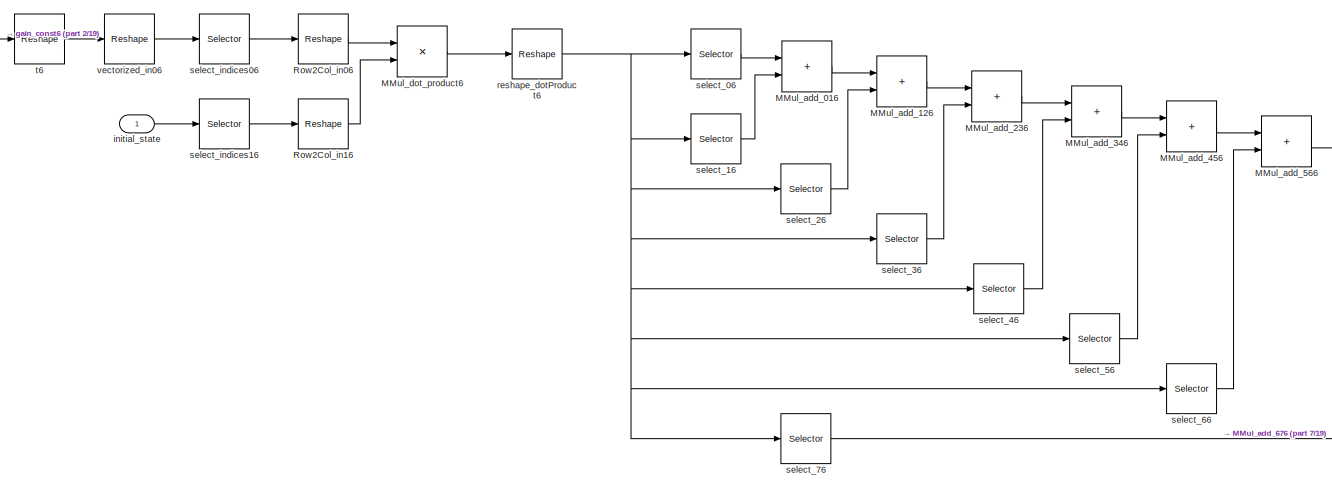
[diagram: root canvas - part 1/19, middle left region]
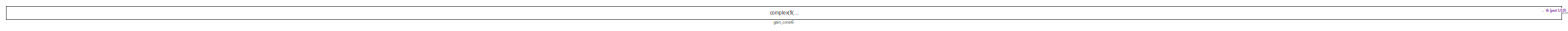
[diagram: root canvas - part 2/19, top left region]
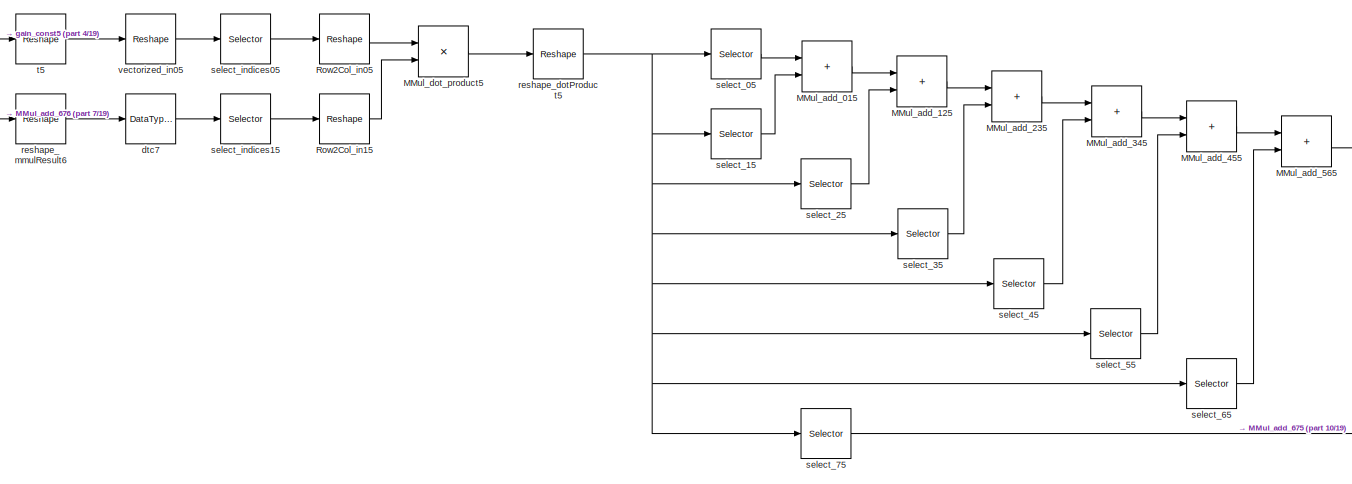
[diagram: root canvas - part 3/19, middle left region]
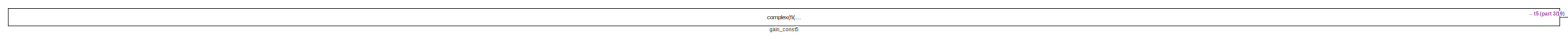
[diagram: root canvas - part 4/19, top left region]
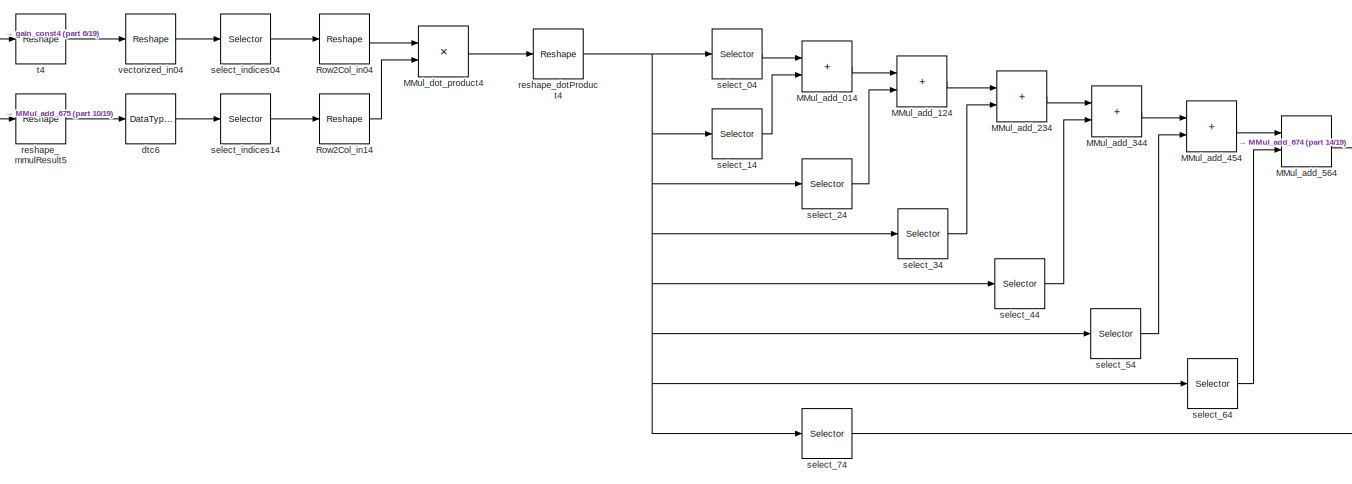
[diagram: root canvas - part 5/19, central region]
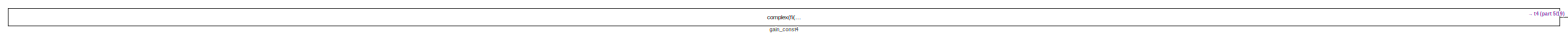
[diagram: root canvas - part 6/19, top center region]
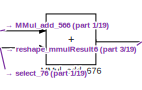
[diagram: root canvas - part 7/19, top left region]
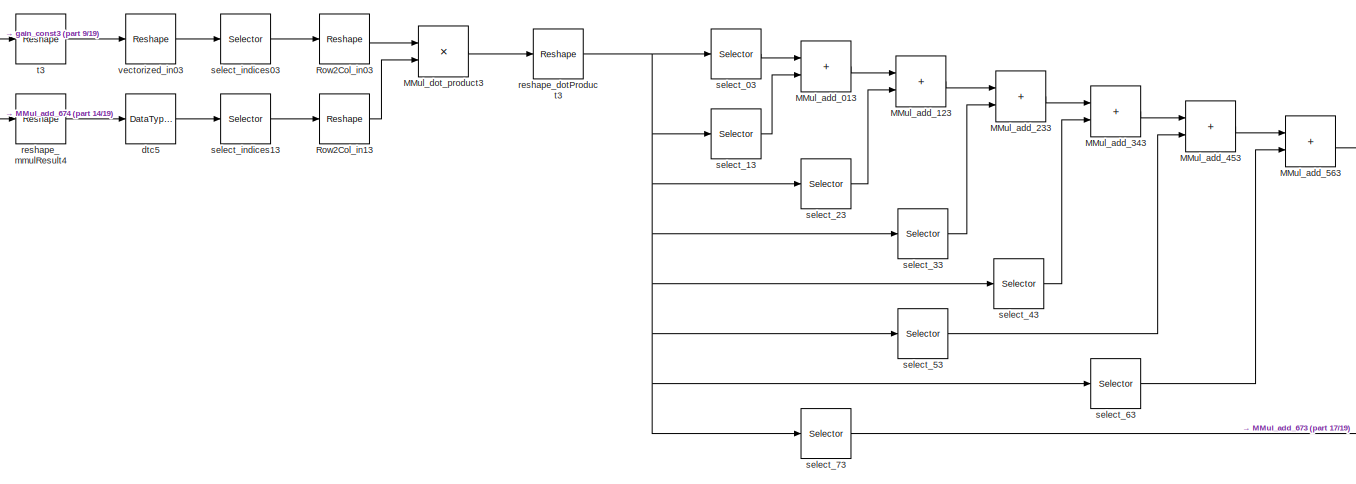
[diagram: root canvas - part 8/19, central region]
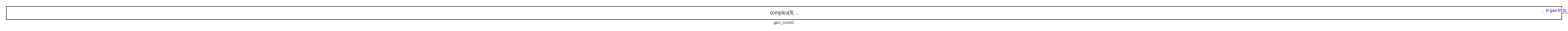
[diagram: root canvas - part 9/19, top center region]
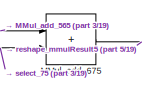
[diagram: root canvas - part 10/19, top center region]
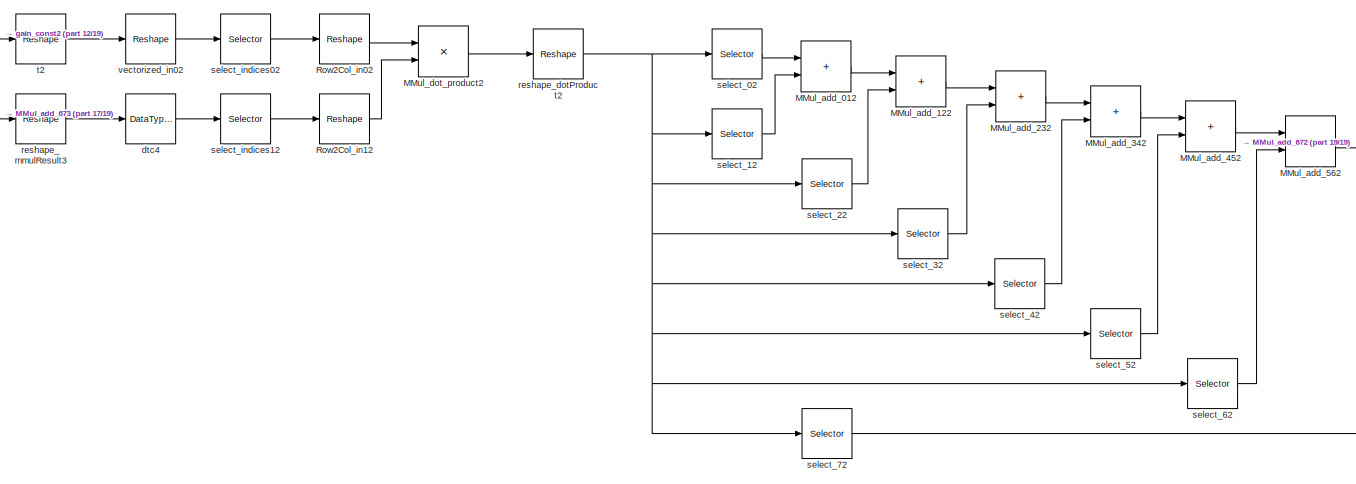
[diagram: root canvas - part 11/19, middle right region]
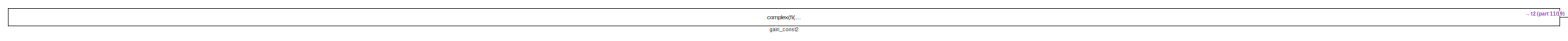
[diagram: root canvas - part 12/19, top center region]
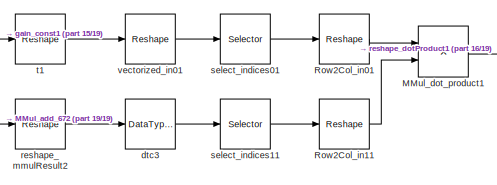
[diagram: root canvas - part 13/19, middle right region]
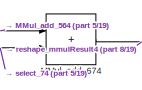
[diagram: root canvas - part 14/19, central region]
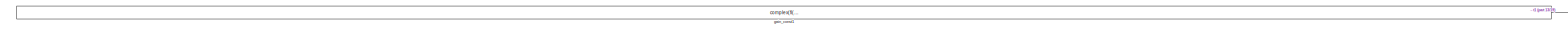
[diagram: root canvas - part 15/19, middle right region]
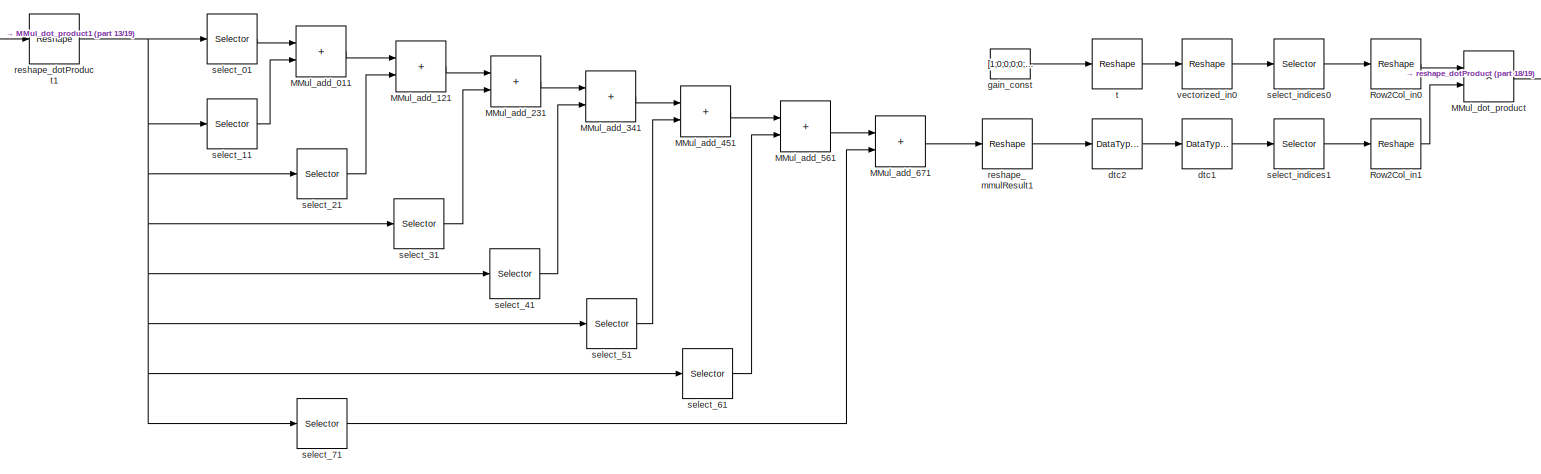
[diagram: root canvas - part 16/19, middle right region]
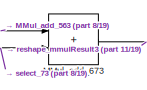
[diagram: root canvas - part 17/19, central region]
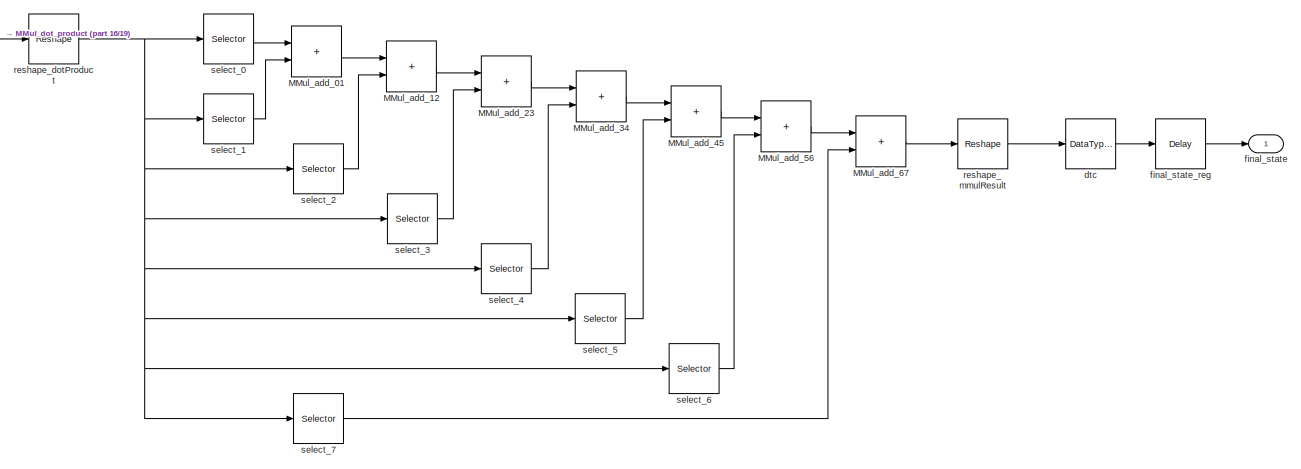
[diagram: root canvas - part 18/19, bottom right region]
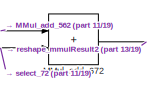
[diagram: root canvas - part 19/19, middle right region]
MODEL slx_ea6e0d9b5152
KIND model
CONFIG AbsTol = auto
CONFIG EnableMultiTasking = off
CONFIG FixedStep = auto
CONFIG MaxStep = auto
CONFIG MinStep = auto
CONFIG RelTol = 1e-3
CONFIG SampleTimeConstraint = Unconstrained
CONFIG SolverName = VariableStepAuto
CONFIG StartTime = 0.0
CONFIG StopTime = 10.0
BLOCK [Sum] MMul_add_01
  IconShape = rectangular
  OutDataTypeStr = fixdt(1, 18, 14)
  SampleTime = 1
BLOCK [Sum] MMul_add_011
  IconShape = rectangular
  OutDataTypeStr = fixdt(1, 32, 26)
  SampleTime = 1
BLOCK [Sum] MMul_add_012
  IconShape = rectangular
  OutDataTypeStr = fixdt(1, 19, 13)
  SampleTime = 1
BLOCK [Sum] MMul_add_013
  IconShape = rectangular
  OutDataTypeStr = fixdt(1, 32, 26)
  SampleTime = 1
BLOCK [Sum] MMul_add_014
  IconShape = rectangular
  OutDataTypeStr = fixdt(1, 19, 13)
  SampleTime = 1
BLOCK [Sum] MMul_add_015
  IconShape = rectangular
  OutDataTypeStr = fixdt(1, 19, 13)
  SampleTime = 1
BLOCK [Sum] MMul_add_016
  IconShape = rectangular
  OutDataTypeStr = fixdt(1, 18, 13)
  SampleTime = 1
BLOCK [Sum] MMul_add_12
  IconShape = rectangular
  OutDataTypeStr = fixdt(1, 18, 14)
  SampleTime = 1
BLOCK [Sum] MMul_add_121
  IconShape = rectangular
  OutDataTypeStr = fixdt(1, 32, 26)
  SampleTime = 1
BLOCK [Sum] MMul_add_122
  IconShape = rectangular
  OutDataTypeStr = fixdt(1, 19, 13)
  SampleTime = 1
BLOCK [Sum] MMul_add_123
  IconShape = rectangular
  OutDataTypeStr = fixdt(1, 32, 26)
  SampleTime = 1
BLOCK [Sum] MMul_add_124
  IconShape = rectangular
  OutDataTypeStr = fixdt(1, 19, 13)
  SampleTime = 1
BLOCK [Sum] MMul_add_125
  IconShape = rectangular
  OutDataTypeStr = fixdt(1, 19, 13)
  SampleTime = 1
BLOCK [Sum] MMul_add_126
  IconShape = rectangular
  OutDataTypeStr = fixdt(1, 18, 13)
  SampleTime = 1
BLOCK [Sum] MMul_add_23
  IconShape = rectangular
  OutDataTypeStr = fixdt(1, 18, 14)
  SampleTime = 1
BLOCK [Sum] MMul_add_231
  IconShape = rectangular
  OutDataTypeStr = fixdt(1, 32, 26)
  SampleTime = 1
BLOCK [Sum] MMul_add_232
  IconShape = rectangular
  OutDataTypeStr = fixdt(1, 19, 13)
  SampleTime = 1
BLOCK [Sum] MMul_add_233
  IconShape = rectangular
  OutDataTypeStr = fixdt(1, 32, 26)
  SampleTime = 1
BLOCK [Sum] MMul_add_234
  IconShape = rectangular
  OutDataTypeStr = fixdt(1, 19, 13)
  SampleTime = 1
BLOCK [Sum] MMul_add_235
  IconShape = rectangular
  OutDataTypeStr = fixdt(1, 19, 13)
  SampleTime = 1
BLOCK [Sum] MMul_add_236
  IconShape = rectangular
  OutDataTypeStr = fixdt(1, 18, 13)
  SampleTime = 1
BLOCK [Sum] MMul_add_34
  IconShape = rectangular
  OutDataTypeStr = fixdt(1, 18, 14)
  SampleTime = 1
BLOCK [Sum] MMul_add_341
  IconShape = rectangular
  OutDataTypeStr = fixdt(1, 32, 26)
  SampleTime = 1
BLOCK [Sum] MMul_add_342
  IconShape = rectangular
  OutDataTypeStr = fixdt(1, 19, 13)
  SampleTime = 1
BLOCK [Sum] MMul_add_343
  IconShape = rectangular
  OutDataTypeStr = fixdt(1, 32, 26)
  SampleTime = 1
BLOCK [Sum] MMul_add_344
  IconShape = rectangular
  OutDataTypeStr = fixdt(1, 19, 13)
  SampleTime = 1
BLOCK [Sum] MMul_add_345
  IconShape = rectangular
  OutDataTypeStr = fixdt(1, 19, 13)
  SampleTime = 1
BLOCK [Sum] MMul_add_346
  IconShape = rectangular
  OutDataTypeStr = fixdt(1, 18, 13)
  SampleTime = 1
BLOCK [Sum] MMul_add_45
  IconShape = rectangular
  OutDataTypeStr = fixdt(1, 18, 14)
  SampleTime = 1
BLOCK [Sum] MMul_add_451
  IconShape = rectangular
  OutDataTypeStr = fixdt(1, 32, 26)
  SampleTime = 1
BLOCK [Sum] MMul_add_452
  IconShape = rectangular
  OutDataTypeStr = fixdt(1, 19, 13)
  SampleTime = 1
BLOCK [Sum] MMul_add_453
  IconShape = rectangular
  OutDataTypeStr = fixdt(1, 32, 26)
  SampleTime = 1
BLOCK [Sum] MMul_add_454
  IconShape = rectangular
  OutDataTypeStr = fixdt(1, 19, 13)
  SampleTime = 1
BLOCK [Sum] MMul_add_455
  IconShape = rectangular
  OutDataTypeStr = fixdt(1, 19, 13)
  SampleTime = 1
BLOCK [Sum] MMul_add_456
  IconShape = rectangular
  OutDataTypeStr = fixdt(1, 18, 13)
  SampleTime = 1
BLOCK [Sum] MMul_add_56
  IconShape = rectangular
  OutDataTypeStr = fixdt(1, 18, 14)
  SampleTime = 1
BLOCK [Sum] MMul_add_561
  IconShape = rectangular
  OutDataTypeStr = fixdt(1, 32, 26)
  SampleTime = 1
BLOCK [Sum] MMul_add_562
  IconShape = rectangular
  OutDataTypeStr = fixdt(1, 19, 13)
  SampleTime = 1
BLOCK [Sum] MMul_add_563
  IconShape = rectangular
  OutDataTypeStr = fixdt(1, 32, 26)
  SampleTime = 1
BLOCK [Sum] MMul_add_564
  IconShape = rectangular
  OutDataTypeStr = fixdt(1, 19, 13)
  SampleTime = 1
BLOCK [Sum] MMul_add_565
  IconShape = rectangular
  OutDataTypeStr = fixdt(1, 19, 13)
  SampleTime = 1
BLOCK [Sum] MMul_add_566
  IconShape = rectangular
  OutDataTypeStr = fixdt(1, 18, 13)
  SampleTime = 1
BLOCK [Sum] MMul_add_67
  IconShape = rectangular
  OutDataTypeStr = fixdt(1, 18, 14)
  SampleTime = 1
BLOCK [Sum] MMul_add_671
  IconShape = rectangular
  OutDataTypeStr = fixdt(1, 32, 26)
  SampleTime = 1
BLOCK [Sum] MMul_add_672
  IconShape = rectangular
  OutDataTypeStr = fixdt(1, 19, 13)
  SampleTime = 1
BLOCK [Sum] MMul_add_673
  IconShape = rectangular
  OutDataTypeStr = fixdt(1, 32, 26)
  SampleTime = 1
BLOCK [Sum] MMul_add_674
  IconShape = rectangular
  OutDataTypeStr = fixdt(1, 19, 13)
  SampleTime = 1
BLOCK [Sum] MMul_add_675
  IconShape = rectangular
  OutDataTypeStr = fixdt(1, 19, 13)
  SampleTime = 1
BLOCK [Sum] MMul_add_676
  IconShape = rectangular
  OutDataTypeStr = fixdt(1, 18, 13)
  SampleTime = 1
BLOCK [Product] MMul_dot_product
  Inputs = **
  OutDataTypeStr = fixdt(1, 18, 14)
  SampleTime = 1
BLOCK [Product] MMul_dot_product1
  Inputs = **
  OutDataTypeStr = fixdt(1, 32, 26)
  SampleTime = 1
BLOCK [Product] MMul_dot_product2
  Inputs = **
  OutDataTypeStr = fixdt(1, 19, 13)
  SampleTime = 1
BLOCK [Product] MMul_dot_product3
  Inputs = **
  OutDataTypeStr = fixdt(1, 32, 26)
  SampleTime = 1
BLOCK [Product] MMul_dot_product4
  Inputs = **
  OutDataTypeStr = fixdt(1, 19, 13)
  SampleTime = 1
BLOCK [Product] MMul_dot_product5
  Inputs = **
  OutDataTypeStr = fixdt(1, 19, 13)
  SampleTime = 1
BLOCK [Product] MMul_dot_product6
  Inputs = **
  OutDataTypeStr = fixdt(1, 18, 13)
  SampleTime = 1
BLOCK [Reshape] Row2Col_in0
  OutputDimensionality = Column vector (2-D)
BLOCK [Reshape] Row2Col_in01
  OutputDimensionality = Column vector (2-D)
BLOCK [Reshape] Row2Col_in02
  OutputDimensionality = Column vector (2-D)
BLOCK [Reshape] Row2Col_in03
  OutputDimensionality = Column vector (2-D)
BLOCK [Reshape] Row2Col_in04
  OutputDimensionality = Column vector (2-D)
BLOCK [Reshape] Row2Col_in05
  OutputDimensionality = Column vector (2-D)
BLOCK [Reshape] Row2Col_in06
  OutputDimensionality = Column vector (2-D)
BLOCK [Reshape] Row2Col_in1
  OutputDimensionality = Column vector (2-D)
BLOCK [Reshape] Row2Col_in11
  OutputDimensionality = Column vector (2-D)
BLOCK [Reshape] Row2Col_in12
  OutputDimensionality = Column vector (2-D)
BLOCK [Reshape] Row2Col_in13
  OutputDimensionality = Column vector (2-D)
BLOCK [Reshape] Row2Col_in14
  OutputDimensionality = Column vector (2-D)
BLOCK [Reshape] Row2Col_in15
  OutputDimensionality = Column vector (2-D)
BLOCK [Reshape] Row2Col_in16
  OutputDimensionality = Column vector (2-D)
BLOCK [DataTypeConversion] dtc
  OutDataTypeStr = fixdt(1, 14, 14)
  RndMeth = Floor
  SampleTime = 1
  SaturateOnIntegerOverflow = off
BLOCK [DataTypeConversion] dtc1
  OutDataTypeStr = fixdt(1, 14, 14)
  RndMeth = Floor
  SampleTime = 1
  SaturateOnIntegerOverflow = off
BLOCK [DataTypeConversion] dtc2
  OutDataTypeStr = fixdt(1, 14, 13)
  RndMeth = Floor
  SampleTime = 1
  SaturateOnIntegerOverflow = off
BLOCK [DataTypeConversion] dtc3
  OutDataTypeStr = fixdt(1, 14, 13)
  RndMeth = Floor
  SampleTime = 1
  SaturateOnIntegerOverflow = off
BLOCK [DataTypeConversion] dtc4
  OutDataTypeStr = fixdt(1, 14, 13)
  RndMeth = Floor
  SampleTime = 1
  SaturateOnIntegerOverflow = off
BLOCK [DataTypeConversion] dtc5
  OutDataTypeStr = fixdt(1, 14, 13)
  RndMeth = Floor
  SampleTime = 1
  SaturateOnIntegerOverflow = off
BLOCK [DataTypeConversion] dtc6
  OutDataTypeStr = fixdt(1, 14, 13)
  RndMeth = Floor
  SampleTime = 1
  SaturateOnIntegerOverflow = off
BLOCK [DataTypeConversion] dtc7
  OutDataTypeStr = fixdt(1, 14, 13)
  RndMeth = Floor
  SampleTime = 1
  SaturateOnIntegerOverflow = off
BLOCK [Outport] final_state
  OutDataTypeStr = fixdt(1,14,14,'DataTypeOverride', 'Off')
  PortDimensions = [8 1]
  SampleTime = 1
  SignalType = complex
BLOCK [Delay] final_state_reg
  DelayLength = double(1)
  InitialCondition = 0
  InputPortMap = u0
  SampleTime = 1
BLOCK [Constant] gain_const
  OutDataTypeStr = fixdt(0, 1, 0)
  SampleTime = 1
  Value = [1;0;0;0;0;0;0;0;0;1;0;0;0;0;0;0;0;0;1;0;0;0;0;0;0;0;0;1;0;0;0;0;0;0;0;0;1;0;0;0;0;0;0;0;0;1;0;0;0;0;0;0;0;0;1;0;0;0;0;0;0;0;0;1]
BLOCK [Constant] gain_const1
  OutDataTypeStr = fixdt(1, 14, 13)
  SampleTime = 1
  Value = complex(fi("numerictype",numerictype(1,14,13),"fimath",fimath("RoundingMethod", "Floor","OverflowAction", "Wrap","ProductMode","FullPrecision","SumMode","FullPrecision"),"Value","[0.70703125;0.70703125;0;0;0;0;0;0;0.70703125;-0.7071533203125;0;0;0;0;0;0;0;0;0.70703125;0.70703125;0;0;0;0;0;0;0.70703125;-0.7071533203125;0;0;0;0;0;0;0;0;0.70703125;0.70703125;0;0;0;0;0;0;0.70703125;-0.7071533203125;0;...<+383ch>
BLOCK [Constant] gain_const2
  OutDataTypeStr = fixdt(0, 1, 0)
  SampleTime = 1
  Value = complex(fi("numerictype",numerictype(0,1,0),"fimath",fimath("RoundingMethod", "Floor","OverflowAction", "Wrap","ProductMode","FullPrecision","SumMode","FullPrecision"),"Value","[1;0;0;0;0;0;0;0;0;1;0;0;0;0;0;0;0;0;1;0;0;0;0;0;0;0;0;1;0;0;0;0;0;0;0;0;1;0;0;0;0;0;0;0;0;1;0;0;0;0;0;0;0;0;1;0;0;0;0;0;0;0;0;1]"), fi("numerictype",numerictype(0,1,0),"fimath",fimath("RoundingMethod", "Floor","OverflowAct...<+211ch>  <repeated x3 — deduplicated; at blocks: gain_const2, gain_const4, gain_const5>
BLOCK [Constant] gain_const3
  OutDataTypeStr = fixdt(1, 14, 13)
  SampleTime = 1
  Value = complex(fi("numerictype",numerictype(1,14,13),"fimath",fimath("RoundingMethod", "Floor","OverflowAction", "Wrap","ProductMode","FullPrecision","SumMode","FullPrecision"),"Value","[0.70703125;0;0.70703125;0;0;0;0;0;0;0.70703125;0;0.70703125;0;0;0;0;0.70703125;0;-0.707275390625;0;0;0;0;0;0;0.70703125;0;-0.707275390625;0;0;0;0;0;0;0;0;0.70703125;0;0.70703125;0;0;0;0;0;0;0.70703125;0;0.70703125;0;0;0;...<+379ch>
BLOCK [Constant] gain_const4
  OutDataTypeStr = fixdt(0, 1, 0)
  SampleTime = 1
BLOCK [Constant] gain_const5
  OutDataTypeStr = fixdt(0, 1, 0)
  SampleTime = 1
BLOCK [Constant] gain_const6
  OutDataTypeStr = fixdt(1, 14, 13)
  SampleTime = 1
  Value = complex(fi("numerictype",numerictype(1,14,13),"fimath",fimath("RoundingMethod", "Floor","OverflowAction", "Wrap","ProductMode","FullPrecision","SumMode","FullPrecision"),"Value","[0.70703125;0;0;0;0.70703125;0;0;0;0;0.70703125;0;0;0;0.70703125;0;0;0;0;0.70703125;0;0;0;0.70703125;0;0;0;0;0.70703125;0;0;0;0.70703125;0.70703125;0;0;0;-0.707275390625;0;0;0;0;0.70703125;0;0;0;-0.707275390625;0;0;0;0;0....<+379ch>
BLOCK [Inport] initial_state
  OutDataTypeStr = fixdt(0,1,0,'DataTypeOverride', 'Off')
  PortDimensions = [8 1]
  SampleTime = 1
BLOCK [Reshape] reshape_dotProduct
  OutputDimensionality = Customize
  OutputDimensions = [8,8]
BLOCK [Reshape] reshape_dotProduct1
  OutputDimensionality = Customize
  OutputDimensions = [8,8]
BLOCK [Reshape] reshape_dotProduct2
  OutputDimensionality = Customize
  OutputDimensions = [8,8]
BLOCK [Reshape] reshape_dotProduct3
  OutputDimensionality = Customize
  OutputDimensions = [8,8]
BLOCK [Reshape] reshape_dotProduct4
  OutputDimensionality = Customize
  OutputDimensions = [8,8]
BLOCK [Reshape] reshape_dotProduct5
  OutputDimensionality = Customize
  OutputDimensions = [8,8]
BLOCK [Reshape] reshape_dotProduct6
  OutputDimensionality = Customize
  OutputDimensions = [8,8]
BLOCK [Reshape] reshape_mmulResult
  OutputDimensionality = Customize
  OutputDimensions = [8,1]
BLOCK [Reshape] reshape_mmulResult1
  OutputDimensionality = Customize
  OutputDimensions = [8,1]
BLOCK [Reshape] reshape_mmulResult2
  OutputDimensionality = Customize
  OutputDimensions = [8,1]
BLOCK [Reshape] reshape_mmulResult3
  OutputDimensionality = Customize
  OutputDimensions = [8,1]
BLOCK [Reshape] reshape_mmulResult4
  OutputDimensionality = Customize
  OutputDimensions = [8,1]
BLOCK [Reshape] reshape_mmulResult5
  OutputDimensionality = Customize
  OutputDimensions = [8,1]
BLOCK [Reshape] reshape_mmulResult6
  OutputDimensionality = Customize
  OutputDimensions = [8,1]
BLOCK [Selector] select_0
  IndexOptions = Index vector (dialog),Select all
  Indices = double(1),[]
  NumberOfDimensions = 2
  OutputSizes = 1
BLOCK [Selector] select_01
  IndexOptions = Index vector (dialog),Select all
  Indices = double(1),[]
  NumberOfDimensions = 2
  OutputSizes = 1
BLOCK [Selector] select_02
  IndexOptions = Index vector (dialog),Select all
  Indices = double(1),[]
  NumberOfDimensions = 2
  OutputSizes = 1
BLOCK [Selector] select_03
  IndexOptions = Index vector (dialog),Select all
  Indices = double(1),[]
  NumberOfDimensions = 2
  OutputSizes = 1
BLOCK [Selector] select_04
  IndexOptions = Index vector (dialog),Select all
  Indices = double(1),[]
  NumberOfDimensions = 2
  OutputSizes = 1
BLOCK [Selector] select_05
  IndexOptions = Index vector (dialog),Select all
  Indices = double(1),[]
  NumberOfDimensions = 2
  OutputSizes = 1
BLOCK [Selector] select_06
  IndexOptions = Index vector (dialog),Select all
  Indices = double(1),[]
  NumberOfDimensions = 2
  OutputSizes = 1
BLOCK [Selector] select_1
  IndexOptions = Index vector (dialog),Select all
  Indices = double(2),[]
  NumberOfDimensions = 2
  OutputSizes = 1
BLOCK [Selector] select_11
  IndexOptions = Index vector (dialog),Select all
  Indices = double(2),[]
  NumberOfDimensions = 2
  OutputSizes = 1
BLOCK [Selector] select_12
  IndexOptions = Index vector (dialog),Select all
  Indices = double(2),[]
  NumberOfDimensions = 2
  OutputSizes = 1
BLOCK [Selector] select_13
  IndexOptions = Index vector (dialog),Select all
  Indices = double(2),[]
  NumberOfDimensions = 2
  OutputSizes = 1
BLOCK [Selector] select_14
  IndexOptions = Index vector (dialog),Select all
  Indices = double(2),[]
  NumberOfDimensions = 2
  OutputSizes = 1
BLOCK [Selector] select_15
  IndexOptions = Index vector (dialog),Select all
  Indices = double(2),[]
  NumberOfDimensions = 2
  OutputSizes = 1
BLOCK [Selector] select_16
  IndexOptions = Index vector (dialog),Select all
  Indices = double(2),[]
  NumberOfDimensions = 2
  OutputSizes = 1
BLOCK [Selector] select_2
  IndexOptions = Index vector (dialog),Select all
  Indices = double(3),[]
  NumberOfDimensions = 2
  OutputSizes = 1
BLOCK [Selector] select_21
  IndexOptions = Index vector (dialog),Select all
  Indices = double(3),[]
  NumberOfDimensions = 2
  OutputSizes = 1
BLOCK [Selector] select_22
  IndexOptions = Index vector (dialog),Select all
  Indices = double(3),[]
  NumberOfDimensions = 2
  OutputSizes = 1
BLOCK [Selector] select_23
  IndexOptions = Index vector (dialog),Select all
  Indices = double(3),[]
  NumberOfDimensions = 2
  OutputSizes = 1
BLOCK [Selector] select_24
  IndexOptions = Index vector (dialog),Select all
  Indices = double(3),[]
  NumberOfDimensions = 2
  OutputSizes = 1
BLOCK [Selector] select_25
  IndexOptions = Index vector (dialog),Select all
  Indices = double(3),[]
  NumberOfDimensions = 2
  OutputSizes = 1
BLOCK [Selector] select_26
  IndexOptions = Index vector (dialog),Select all
  Indices = double(3),[]
  NumberOfDimensions = 2
  OutputSizes = 1
BLOCK [Selector] select_3
  IndexOptions = Index vector (dialog),Select all
  Indices = double(4),[]
  NumberOfDimensions = 2
  OutputSizes = 1
BLOCK [Selector] select_31
  IndexOptions = Index vector (dialog),Select all
  Indices = double(4),[]
  NumberOfDimensions = 2
  OutputSizes = 1
BLOCK [Selector] select_32
  IndexOptions = Index vector (dialog),Select all
  Indices = double(4),[]
  NumberOfDimensions = 2
  OutputSizes = 1
BLOCK [Selector] select_33
  IndexOptions = Index vector (dialog),Select all
  Indices = double(4),[]
  NumberOfDimensions = 2
  OutputSizes = 1
BLOCK [Selector] select_34
  IndexOptions = Index vector (dialog),Select all
  Indices = double(4),[]
  NumberOfDimensions = 2
  OutputSizes = 1
BLOCK [Selector] select_35
  IndexOptions = Index vector (dialog),Select all
  Indices = double(4),[]
  NumberOfDimensions = 2
  OutputSizes = 1
BLOCK [Selector] select_36
  IndexOptions = Index vector (dialog),Select all
  Indices = double(4),[]
  NumberOfDimensions = 2
  OutputSizes = 1
BLOCK [Selector] select_4
  IndexOptions = Index vector (dialog),Select all
  Indices = double(5),[]
  NumberOfDimensions = 2
  OutputSizes = 1
BLOCK [Selector] select_41
  IndexOptions = Index vector (dialog),Select all
  Indices = double(5),[]
  NumberOfDimensions = 2
  OutputSizes = 1
BLOCK [Selector] select_42
  IndexOptions = Index vector (dialog),Select all
  Indices = double(5),[]
  NumberOfDimensions = 2
  OutputSizes = 1
BLOCK [Selector] select_43
  IndexOptions = Index vector (dialog),Select all
  Indices = double(5),[]
  NumberOfDimensions = 2
  OutputSizes = 1
BLOCK [Selector] select_44
  IndexOptions = Index vector (dialog),Select all
  Indices = double(5),[]
  NumberOfDimensions = 2
  OutputSizes = 1
BLOCK [Selector] select_45
  IndexOptions = Index vector (dialog),Select all
  Indices = double(5),[]
  NumberOfDimensions = 2
  OutputSizes = 1
BLOCK [Selector] select_46
  IndexOptions = Index vector (dialog),Select all
  Indices = double(5),[]
  NumberOfDimensions = 2
  OutputSizes = 1
BLOCK [Selector] select_5
  IndexOptions = Index vector (dialog),Select all
  Indices = double(6),[]
  NumberOfDimensions = 2
  OutputSizes = 1
BLOCK [Selector] select_51
  IndexOptions = Index vector (dialog),Select all
  Indices = double(6),[]
  NumberOfDimensions = 2
  OutputSizes = 1
BLOCK [Selector] select_52
  IndexOptions = Index vector (dialog),Select all
  Indices = double(6),[]
  NumberOfDimensions = 2
  OutputSizes = 1
BLOCK [Selector] select_53
  IndexOptions = Index vector (dialog),Select all
  Indices = double(6),[]
  NumberOfDimensions = 2
  OutputSizes = 1
BLOCK [Selector] select_54
  IndexOptions = Index vector (dialog),Select all
  Indices = double(6),[]
  NumberOfDimensions = 2
  OutputSizes = 1
BLOCK [Selector] select_55
  IndexOptions = Index vector (dialog),Select all
  Indices = double(6),[]
  NumberOfDimensions = 2
  OutputSizes = 1
BLOCK [Selector] select_56
  IndexOptions = Index vector (dialog),Select all
  Indices = double(6),[]
  NumberOfDimensions = 2
  OutputSizes = 1
BLOCK [Selector] select_6
  IndexOptions = Index vector (dialog),Select all
  Indices = double(7),[]
  NumberOfDimensions = 2
  OutputSizes = 1
BLOCK [Selector] select_61
  IndexOptions = Index vector (dialog),Select all
  Indices = double(7),[]
  NumberOfDimensions = 2
  OutputSizes = 1
BLOCK [Selector] select_62
  IndexOptions = Index vector (dialog),Select all
  Indices = double(7),[]
  NumberOfDimensions = 2
  OutputSizes = 1
BLOCK [Selector] select_63
  IndexOptions = Index vector (dialog),Select all
  Indices = double(7),[]
  NumberOfDimensions = 2
  OutputSizes = 1
BLOCK [Selector] select_64
  IndexOptions = Index vector (dialog),Select all
  Indices = double(7),[]
  NumberOfDimensions = 2
  OutputSizes = 1
BLOCK [Selector] select_65
  IndexOptions = Index vector (dialog),Select all
  Indices = double(7),[]
  NumberOfDimensions = 2
  OutputSizes = 1
BLOCK [Selector] select_66
  IndexOptions = Index vector (dialog),Select all
  Indices = double(7),[]
  NumberOfDimensions = 2
  OutputSizes = 1
BLOCK [Selector] select_7
  IndexOptions = Index vector (dialog),Select all
  Indices = double(8),[]
  NumberOfDimensions = 2
  OutputSizes = 1
BLOCK [Selector] select_71
  IndexOptions = Index vector (dialog),Select all
  Indices = double(8),[]
  NumberOfDimensions = 2
  OutputSizes = 1
BLOCK [Selector] select_72
  IndexOptions = Index vector (dialog),Select all
  Indices = double(8),[]
  NumberOfDimensions = 2
  OutputSizes = 1
BLOCK [Selector] select_73
  IndexOptions = Index vector (dialog),Select all
  Indices = double(8),[]
  NumberOfDimensions = 2
  OutputSizes = 1
BLOCK [Selector] select_74
  IndexOptions = Index vector (dialog),Select all
  Indices = double(8),[]
  NumberOfDimensions = 2
  OutputSizes = 1
BLOCK [Selector] select_75
  IndexOptions = Index vector (dialog),Select all
  Indices = double(8),[]
  NumberOfDimensions = 2
  OutputSizes = 1
BLOCK [Selector] select_76
  IndexOptions = Index vector (dialog),Select all
  Indices = double(8),[]
  NumberOfDimensions = 2
  OutputSizes = 1
BLOCK [Selector] select_indices0
  IndexOptions = Index vector (dialog)
  Indices = double([1 9 17 25 33 41 49 57 2 10 18 26 34 42 50 58 3 11 19 27 35 43 51 59 4 12 20 28 36 44 52 60 5 13 21 29 37 45 53 61 6 14 22 30 38 46 54 62 7 15 23 31 39 47 55 63 8 16 24 32 40 48 56 64])  <repeated x7 — deduplicated; at blocks: select_indices0, select_indices01, select_indices02, select_indices03, select_indices04, select_indices05, select_indices06>
  InputPortWidth = 64
  OutputSizes = 1
BLOCK [Selector] select_indices01
  IndexOptions = Index vector (dialog)
  InputPortWidth = 64
  OutputSizes = 1
BLOCK [Selector] select_indices02
  IndexOptions = Index vector (dialog)
  InputPortWidth = 64
  OutputSizes = 1
BLOCK [Selector] select_indices03
  IndexOptions = Index vector (dialog)
  InputPortWidth = 64
  OutputSizes = 1
BLOCK [Selector] select_indices04
  IndexOptions = Index vector (dialog)
  InputPortWidth = 64
  OutputSizes = 1
BLOCK [Selector] select_indices05
  IndexOptions = Index vector (dialog)
  InputPortWidth = 64
  OutputSizes = 1
BLOCK [Selector] select_indices06
  IndexOptions = Index vector (dialog)
  InputPortWidth = 64
  OutputSizes = 1
BLOCK [Selector] select_indices1
  IndexOptions = Index vector (dialog)
  Indices = double([1 2 3 4 5 6 7 8 1 2 3 4 5 6 7 8 1 2 3 4 5 6 7 8 1 2 3 4 5 6 7 8 1 2 3 4 5 6 7 8 1 2 3 4 5 6 7 8 1 2 3 4 5 6 7 8 1 2 3 4 5 6 7 8])
  InputPortWidth = 8
  OutputSizes = 1
BLOCK [Selector] select_indices11
  IndexOptions = Index vector (dialog)
  Indices = double([1 2 3 4 5 6 7 8 1 2 3 4 5 6 7 8 1 2 3 4 5 6 7 8 1 2 3 4 5 6 7 8 1 2 3 4 5 6 7 8 1 2 3 4 5 6 7 8 1 2 3 4 5 6 7 8 1 2 3 4 5 6 7 8])
  InputPortWidth = 8
  OutputSizes = 1
BLOCK [Selector] select_indices12
  IndexOptions = Index vector (dialog)
  Indices = double([1 2 3 4 5 6 7 8 1 2 3 4 5 6 7 8 1 2 3 4 5 6 7 8 1 2 3 4 5 6 7 8 1 2 3 4 5 6 7 8 1 2 3 4 5 6 7 8 1 2 3 4 5 6 7 8 1 2 3 4 5 6 7 8])
  InputPortWidth = 8
  OutputSizes = 1
BLOCK [Selector] select_indices13
  IndexOptions = Index vector (dialog)
  Indices = double([1 2 3 4 5 6 7 8 1 2 3 4 5 6 7 8 1 2 3 4 5 6 7 8 1 2 3 4 5 6 7 8 1 2 3 4 5 6 7 8 1 2 3 4 5 6 7 8 1 2 3 4 5 6 7 8 1 2 3 4 5 6 7 8])
  InputPortWidth = 8
  OutputSizes = 1
BLOCK [Selector] select_indices14
  IndexOptions = Index vector (dialog)
  Indices = double([1 2 3 4 5 6 7 8 1 2 3 4 5 6 7 8 1 2 3 4 5 6 7 8 1 2 3 4 5 6 7 8 1 2 3 4 5 6 7 8 1 2 3 4 5 6 7 8 1 2 3 4 5 6 7 8 1 2 3 4 5 6 7 8])
  InputPortWidth = 8
  OutputSizes = 1
BLOCK [Selector] select_indices15
  IndexOptions = Index vector (dialog)
  Indices = double([1 2 3 4 5 6 7 8 1 2 3 4 5 6 7 8 1 2 3 4 5 6 7 8 1 2 3 4 5 6 7 8 1 2 3 4 5 6 7 8 1 2 3 4 5 6 7 8 1 2 3 4 5 6 7 8 1 2 3 4 5 6 7 8])
  InputPortWidth = 8
  OutputSizes = 1
BLOCK [Selector] select_indices16
  IndexOptions = Index vector (dialog)
  Indices = double([1 2 3 4 5 6 7 8 1 2 3 4 5 6 7 8 1 2 3 4 5 6 7 8 1 2 3 4 5 6 7 8 1 2 3 4 5 6 7 8 1 2 3 4 5 6 7 8 1 2 3 4 5 6 7 8 1 2 3 4 5 6 7 8])
  InputPortWidth = 8
  OutputSizes = 1
BLOCK [Reshape] t
  OutputDimensionality = Customize
  OutputDimensions = [8,8]
BLOCK [Reshape] t1
  OutputDimensionality = Customize
  OutputDimensions = [8,8]
BLOCK [Reshape] t2
  OutputDimensionality = Customize
  OutputDimensions = [8,8]
BLOCK [Reshape] t3
  OutputDimensionality = Customize
  OutputDimensions = [8,8]
BLOCK [Reshape] t4
  OutputDimensionality = Customize
  OutputDimensions = [8,8]
BLOCK [Reshape] t5
  OutputDimensionality = Customize
  OutputDimensions = [8,8]
BLOCK [Reshape] t6
  OutputDimensionality = Customize
  OutputDimensions = [8,8]
BLOCK [Reshape] vectorized_in0
  OutputDimensionality = Row vector (2-D)
BLOCK [Reshape] vectorized_in01
  OutputDimensionality = Row vector (2-D)
BLOCK [Reshape] vectorized_in02
  OutputDimensionality = Row vector (2-D)
BLOCK [Reshape] vectorized_in03
  OutputDimensionality = Row vector (2-D)
BLOCK [Reshape] vectorized_in04
  OutputDimensionality = Row vector (2-D)
BLOCK [Reshape] vectorized_in05
  OutputDimensionality = Row vector (2-D)
BLOCK [Reshape] vectorized_in06
  OutputDimensionality = Row vector (2-D)
LINE MMul_add_011:1 -> MMul_add_121:1
LINE MMul_add_012:1 -> MMul_add_122:1
LINE MMul_add_013:1 -> MMul_add_123:1
LINE MMul_add_014:1 -> MMul_add_124:1
LINE MMul_add_015:1 -> MMul_add_125:1
LINE MMul_add_016:1 -> MMul_add_126:1
LINE MMul_add_01:1 -> MMul_add_12:1
LINE MMul_add_121:1 -> MMul_add_231:1
LINE MMul_add_122:1 -> MMul_add_232:1
LINE MMul_add_123:1 -> MMul_add_233:1
LINE MMul_add_124:1 -> MMul_add_234:1
LINE MMul_add_125:1 -> MMul_add_235:1
LINE MMul_add_126:1 -> MMul_add_236:1
LINE MMul_add_12:1 -> MMul_add_23:1
LINE MMul_add_231:1 -> MMul_add_341:1
LINE MMul_add_232:1 -> MMul_add_342:1
LINE MMul_add_233:1 -> MMul_add_343:1
LINE MMul_add_234:1 -> MMul_add_344:1
LINE MMul_add_235:1 -> MMul_add_345:1
LINE MMul_add_236:1 -> MMul_add_346:1
LINE MMul_add_23:1 -> MMul_add_34:1
LINE MMul_add_341:1 -> MMul_add_451:1
LINE MMul_add_342:1 -> MMul_add_452:1
LINE MMul_add_343:1 -> MMul_add_453:1
LINE MMul_add_344:1 -> MMul_add_454:1
LINE MMul_add_345:1 -> MMul_add_455:1
LINE MMul_add_346:1 -> MMul_add_456:1
LINE MMul_add_34:1 -> MMul_add_45:1
LINE MMul_add_451:1 -> MMul_add_561:1
LINE MMul_add_452:1 -> MMul_add_562:1
LINE MMul_add_453:1 -> MMul_add_563:1
LINE MMul_add_454:1 -> MMul_add_564:1
LINE MMul_add_455:1 -> MMul_add_565:1
LINE MMul_add_456:1 -> MMul_add_566:1
LINE MMul_add_45:1 -> MMul_add_56:1
LINE MMul_add_561:1 -> MMul_add_671:1
LINE MMul_add_562:1 -> MMul_add_672:1
LINE MMul_add_563:1 -> MMul_add_673:1
LINE MMul_add_564:1 -> MMul_add_674:1
LINE MMul_add_565:1 -> MMul_add_675:1
LINE MMul_add_566:1 -> MMul_add_676:1
LINE MMul_add_56:1 -> MMul_add_67:1
LINE MMul_add_671:1 -> reshape_mmulResult1:1
LINE MMul_add_672:1 -> reshape_mmulResult2:1
LINE MMul_add_673:1 -> reshape_mmulResult3:1
LINE MMul_add_674:1 -> reshape_mmulResult4:1
LINE MMul_add_675:1 -> reshape_mmulResult5:1
LINE MMul_add_676:1 -> reshape_mmulResult6:1
LINE MMul_add_67:1 -> reshape_mmulResult:1
LINE MMul_dot_product1:1 -> reshape_dotProduct1:1
LINE MMul_dot_product2:1 -> reshape_dotProduct2:1
LINE MMul_dot_product3:1 -> reshape_dotProduct3:1
LINE MMul_dot_product4:1 -> reshape_dotProduct4:1
LINE MMul_dot_product5:1 -> reshape_dotProduct5:1
LINE MMul_dot_product6:1 -> reshape_dotProduct6:1
LINE MMul_dot_product:1 -> reshape_dotProduct:1
LINE Row2Col_in01:1 -> MMul_dot_product1:1
LINE Row2Col_in02:1 -> MMul_dot_product2:1
LINE Row2Col_in03:1 -> MMul_dot_product3:1
LINE Row2Col_in04:1 -> MMul_dot_product4:1
LINE Row2Col_in05:1 -> MMul_dot_product5:1
LINE Row2Col_in06:1 -> MMul_dot_product6:1
LINE Row2Col_in0:1 -> MMul_dot_product:1
LINE Row2Col_in11:1 -> MMul_dot_product1:2
LINE Row2Col_in12:1 -> MMul_dot_product2:2
LINE Row2Col_in13:1 -> MMul_dot_product3:2
LINE Row2Col_in14:1 -> MMul_dot_product4:2
LINE Row2Col_in15:1 -> MMul_dot_product5:2
LINE Row2Col_in16:1 -> MMul_dot_product6:2
LINE Row2Col_in1:1 -> MMul_dot_product:2
LINE dtc1:1 -> select_indices1:1
LINE dtc2:1 -> dtc1:1
LINE dtc3:1 -> select_indices11:1
LINE dtc4:1 -> select_indices12:1
LINE dtc5:1 -> select_indices13:1
LINE dtc6:1 -> select_indices14:1
LINE dtc7:1 -> select_indices15:1
LINE dtc:1 -> final_state_reg:1
LINE final_state_reg:1 -> final_state:1
LINE gain_const1:1 -> t1:1
LINE gain_const2:1 -> t2:1
LINE gain_const3:1 -> t3:1
LINE gain_const4:1 -> t4:1
LINE gain_const5:1 -> t5:1
LINE gain_const6:1 -> t6:1
LINE gain_const:1 -> t:1
LINE initial_state:1 -> select_indices16:1
NET reshape_dotProduct1:1 -> select_01:1, select_11:1, select_21:1, select_31:1, select_41:1, select_51:1, select_61:1, select_71:1
NET reshape_dotProduct2:1 -> select_02:1, select_12:1, select_22:1, select_32:1, select_42:1, select_52:1, select_62:1, select_72:1
NET reshape_dotProduct3:1 -> select_03:1, select_13:1, select_23:1, select_33:1, select_43:1, select_53:1, select_63:1, select_73:1
NET reshape_dotProduct4:1 -> select_04:1, select_14:1, select_24:1, select_34:1, select_44:1, select_54:1, select_64:1, select_74:1
NET reshape_dotProduct5:1 -> select_05:1, select_15:1, select_25:1, select_35:1, select_45:1, select_55:1, select_65:1, select_75:1
NET reshape_dotProduct6:1 -> select_06:1, select_16:1, select_26:1, select_36:1, select_46:1, select_56:1, select_66:1, select_76:1
NET reshape_dotProduct:1 -> select_0:1, select_1:1, select_2:1, select_3:1, select_4:1, select_5:1, select_6:1, select_7:1
LINE reshape_mmulResult1:1 -> dtc2:1
LINE reshape_mmulResult2:1 -> dtc3:1
LINE reshape_mmulResult3:1 -> dtc4:1
LINE reshape_mmulResult4:1 -> dtc5:1
LINE reshape_mmulResult5:1 -> dtc6:1
LINE reshape_mmulResult6:1 -> dtc7:1
LINE reshape_mmulResult:1 -> dtc:1
LINE select_01:1 -> MMul_add_011:1
LINE select_02:1 -> MMul_add_012:1
LINE select_03:1 -> MMul_add_013:1
LINE select_04:1 -> MMul_add_014:1
LINE select_05:1 -> MMul_add_015:1
LINE select_06:1 -> MMul_add_016:1
LINE select_0:1 -> MMul_add_01:1
LINE select_11:1 -> MMul_add_011:2
LINE select_12:1 -> MMul_add_012:2
LINE select_13:1 -> MMul_add_013:2
LINE select_14:1 -> MMul_add_014:2
LINE select_15:1 -> MMul_add_015:2
LINE select_16:1 -> MMul_add_016:2
LINE select_1:1 -> MMul_add_01:2
LINE select_21:1 -> MMul_add_121:2
LINE select_22:1 -> MMul_add_122:2
LINE select_23:1 -> MMul_add_123:2
LINE select_24:1 -> MMul_add_124:2
LINE select_25:1 -> MMul_add_125:2
LINE select_26:1 -> MMul_add_126:2
LINE select_2:1 -> MMul_add_12:2
LINE select_31:1 -> MMul_add_231:2
LINE select_32:1 -> MMul_add_232:2
LINE select_33:1 -> MMul_add_233:2
LINE select_34:1 -> MMul_add_234:2
LINE select_35:1 -> MMul_add_235:2
LINE select_36:1 -> MMul_add_236:2
LINE select_3:1 -> MMul_add_23:2
LINE select_41:1 -> MMul_add_341:2
LINE select_42:1 -> MMul_add_342:2
LINE select_43:1 -> MMul_add_343:2
LINE select_44:1 -> MMul_add_344:2
LINE select_45:1 -> MMul_add_345:2
LINE select_46:1 -> MMul_add_346:2
LINE select_4:1 -> MMul_add_34:2
LINE select_51:1 -> MMul_add_451:2
LINE select_52:1 -> MMul_add_452:2
LINE select_53:1 -> MMul_add_453:2
LINE select_54:1 -> MMul_add_454:2
LINE select_55:1 -> MMul_add_455:2
LINE select_56:1 -> MMul_add_456:2
LINE select_5:1 -> MMul_add_45:2
LINE select_61:1 -> MMul_add_561:2
LINE select_62:1 -> MMul_add_562:2
LINE select_63:1 -> MMul_add_563:2
LINE select_64:1 -> MMul_add_564:2
LINE select_65:1 -> MMul_add_565:2
LINE select_66:1 -> MMul_add_566:2
LINE select_6:1 -> MMul_add_56:2
LINE select_71:1 -> MMul_add_671:2
LINE select_72:1 -> MMul_add_672:2
LINE select_73:1 -> MMul_add_673:2
LINE select_74:1 -> MMul_add_674:2
LINE select_75:1 -> MMul_add_675:2
LINE select_76:1 -> MMul_add_676:2
LINE select_7:1 -> MMul_add_67:2
LINE select_indices01:1 -> Row2Col_in01:1
LINE select_indices02:1 -> Row2Col_in02:1
LINE select_indices03:1 -> Row2Col_in03:1
LINE select_indices04:1 -> Row2Col_in04:1
LINE select_indices05:1 -> Row2Col_in05:1
LINE select_indices06:1 -> Row2Col_in06:1
LINE select_indices0:1 -> Row2Col_in0:1
LINE select_indices11:1 -> Row2Col_in11:1
LINE select_indices12:1 -> Row2Col_in12:1
LINE select_indices13:1 -> Row2Col_in13:1
LINE select_indices14:1 -> Row2Col_in14:1
LINE select_indices15:1 -> Row2Col_in15:1
LINE select_indices16:1 -> Row2Col_in16:1
LINE select_indices1:1 -> Row2Col_in1:1
LINE t1:1 -> vectorized_in01:1
LINE t2:1 -> vectorized_in02:1
LINE t3:1 -> vectorized_in03:1
LINE t4:1 -> vectorized_in04:1
LINE t5:1 -> vectorized_in05:1
LINE t6:1 -> vectorized_in06:1
LINE t:1 -> vectorized_in0:1
LINE vectorized_in01:1 -> select_indices01:1
LINE vectorized_in02:1 -> select_indices02:1
LINE vectorized_in03:1 -> select_indices03:1
LINE vectorized_in04:1 -> select_indices04:1
LINE vectorized_in05:1 -> select_indices05:1
LINE vectorized_in06:1 -> select_indices06:1
LINE vectorized_in0:1 -> select_indices0:1
note: NET lines group one-source signal fan-out (src -> all destinations, sorted); 1:1 wires keep LINE
